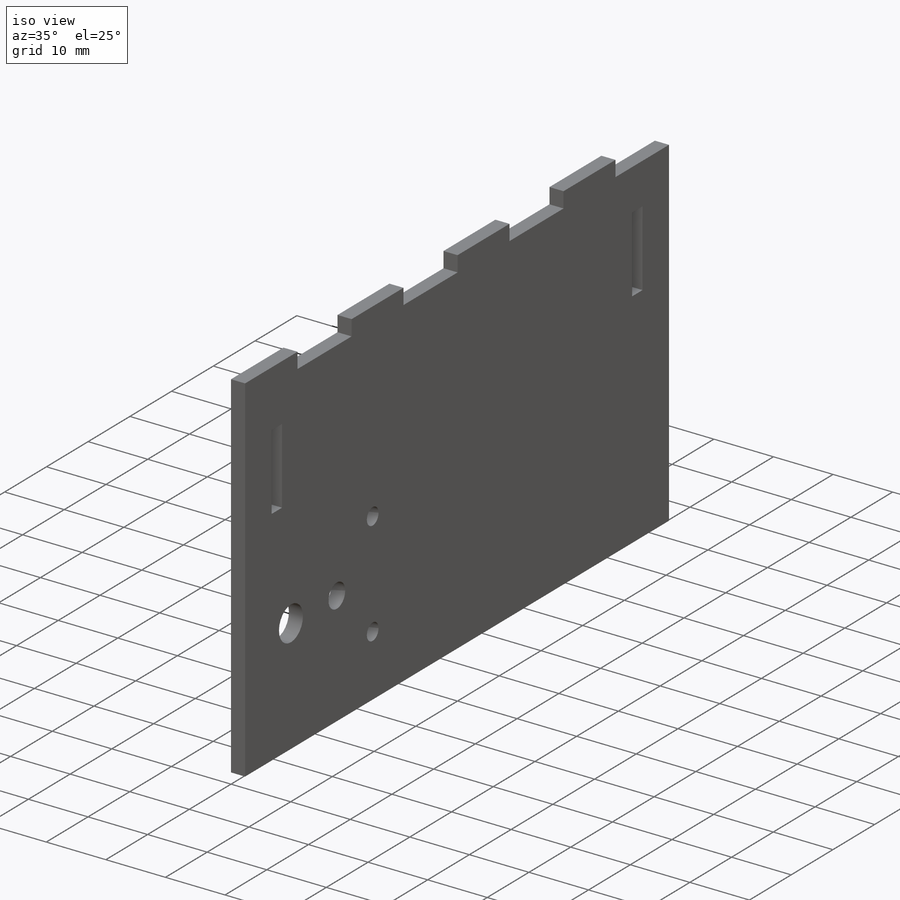
[diagram: iso view]
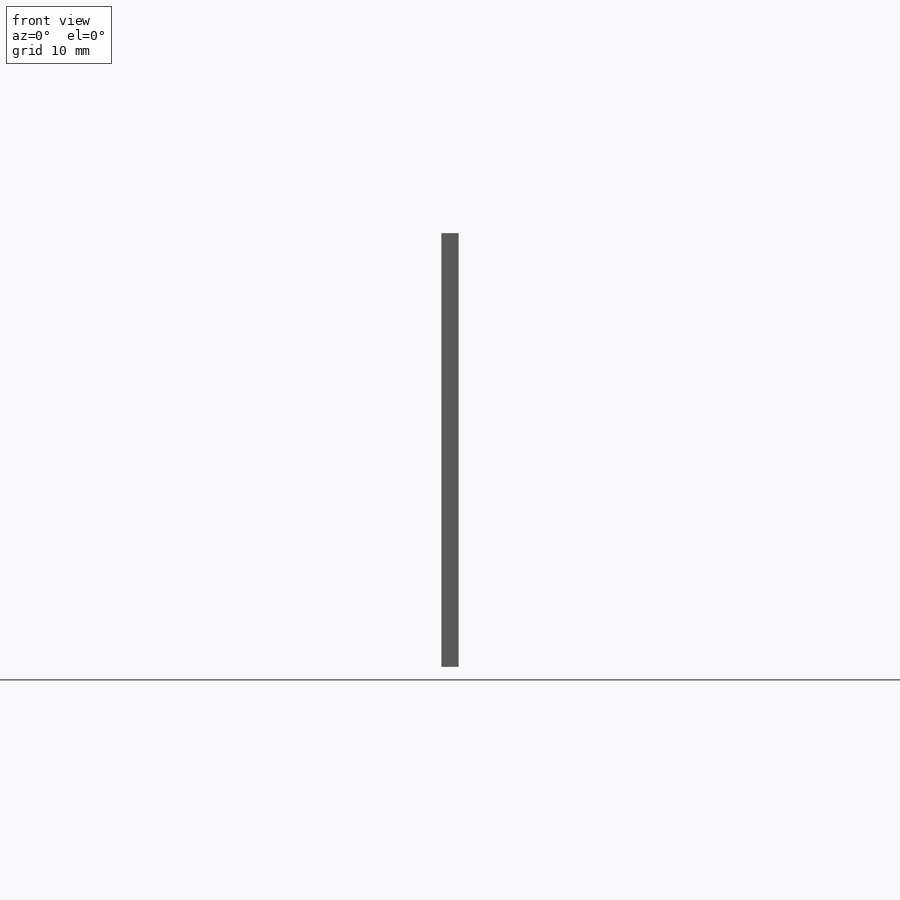
[diagram: front view]
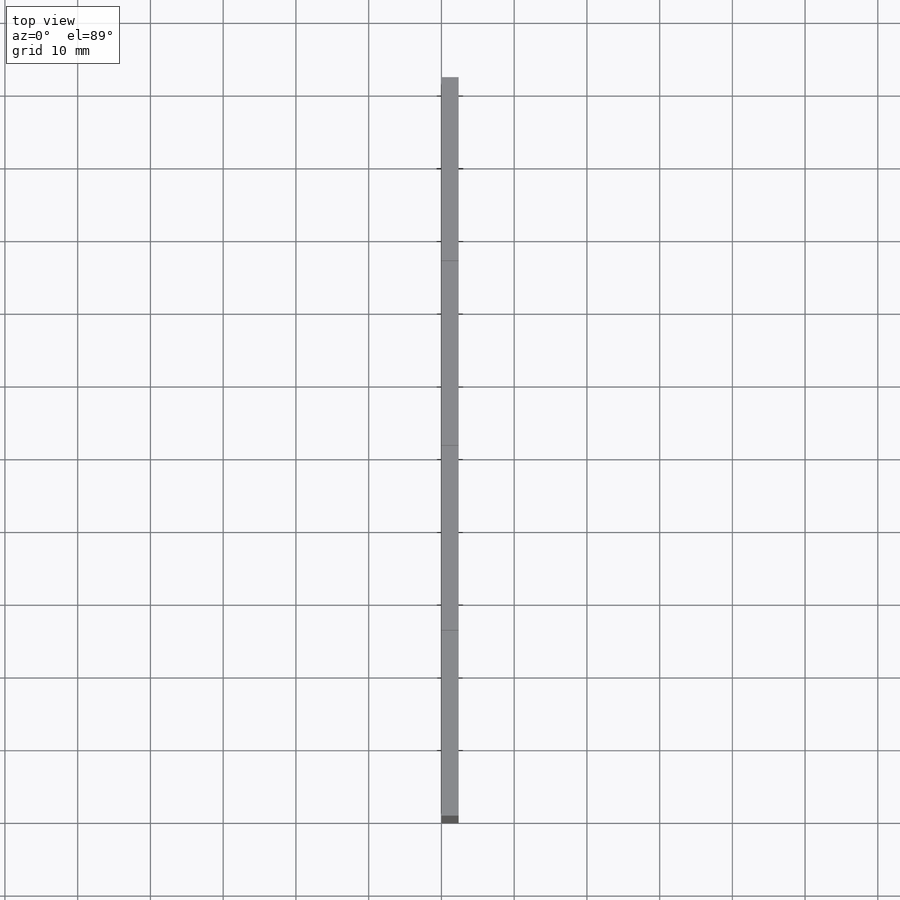
[diagram: top view]
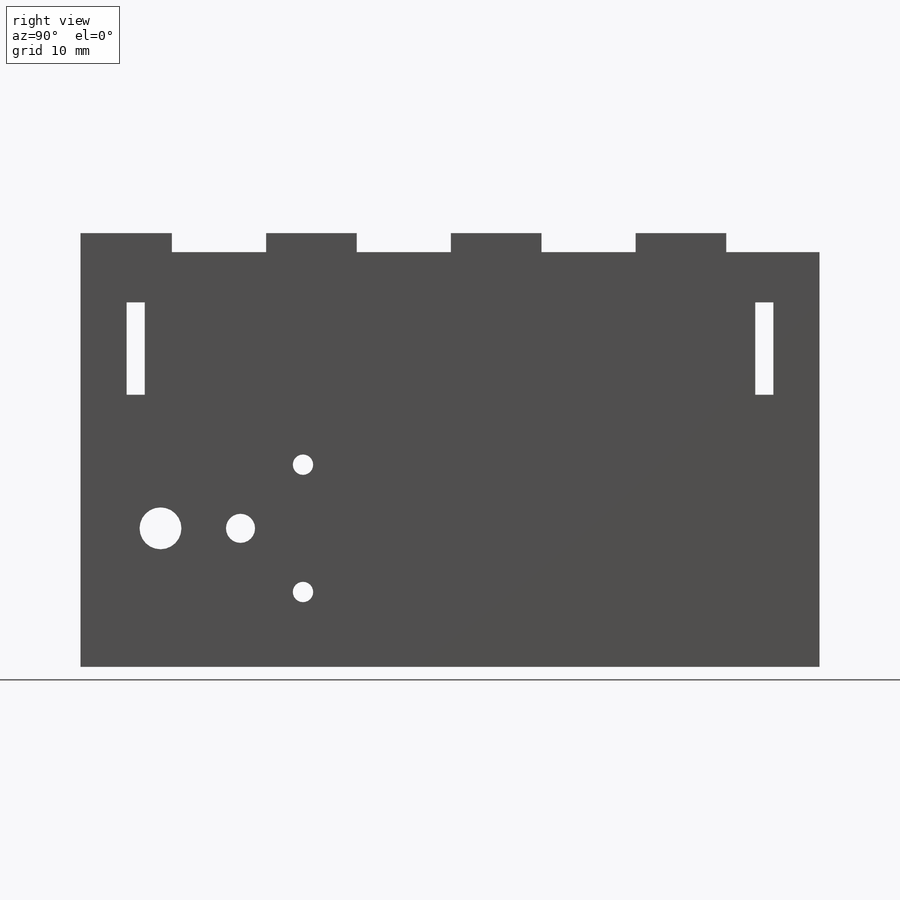
[diagram: right view]
SOLIDWORKS PART (.sldprt)
format: sldprt  version: not decoded by parser v0  size: 252,928 bytes
history: native  units: mm
features: sketch x4, cut_extrude x3, material x1, extrude x1 (+11 scaffold rows collapsed)
feature tree (20):
  scaffold x11  (default folders/planes/origin — collapsed)
  material  "Material <not specified>"
  sketch  "Sketch1"  dims[c1.D1=101.6mm c1.D2=12.7mm c1.D3=12.7mm c1.D4=12.7mm c1.D5=12.7mm c1.D6=12.7mm c1.D7=12.7mm c1.D8=12.7mm c1.D9=3.175mm c1.D10=57.15mm c1.D11=3.175mm c1.D12=3.175mm c1.D13=3.175mm c1.D14=3.175mm c1.D15=3.175mm c1.D16=0.0mm c2.D16=3.175mm c2.D2=2.4892mm]
  extrude  "Boss-Extrude1"  Depth=2.3622mm
  sketch  "Sketch2"  dims[c1.D2=2.8mm c1.D3=4.0mm c1.D1=5.754mm c2.D2=4.0mm c2.D3=2.8mm c2.D4=2.8mm c2.D8=5.754mm c2.D1=38.1mm c3.D4=11.0mm c3.D5=22.0mm c3.D6=31.1mm c4.D5=11.0mm c4.D6=11.0mm c5.D5=11.0mm c5.D6=11.0mm c6.D5=11.0mm c6.D6=9.1mm c6.D7=19.05mm c6.D8=11.0mm c6.D9=~19.59102mm c6.D10=17.5mm c6.D11=8.75mm c7.D5=~11.000003mm c7.D6=~19.59102mm]
  cut_extrude  "Cut-Extrude1"  [1 undecoded]
  sketch  "Sketch3"  dims[D1=0.127mm D2=0.127mm D3=0.127mm D4=0.127mm]
  cut_extrude  "Cut-Extrude2"  [1 undecoded]
  sketch  "Sketch4"  dims[c1.D1=2.4892mm c1.D2=12.7mm c1.D3=6.35mm c2.D2=12.7mm c2.D4=9.525mm]
  cut_extrude  "Cut-Extrude3"  [1 undecoded]
decode coverage: 5 of 8 modeling features carry decoded parameters
note: ~ marks probable driven/reference dimensions
note: 3 parameter values undecoded
summary: no parameter record found for 3 features
note: suppression state not decoded; provenance and decode notes live in map.json
